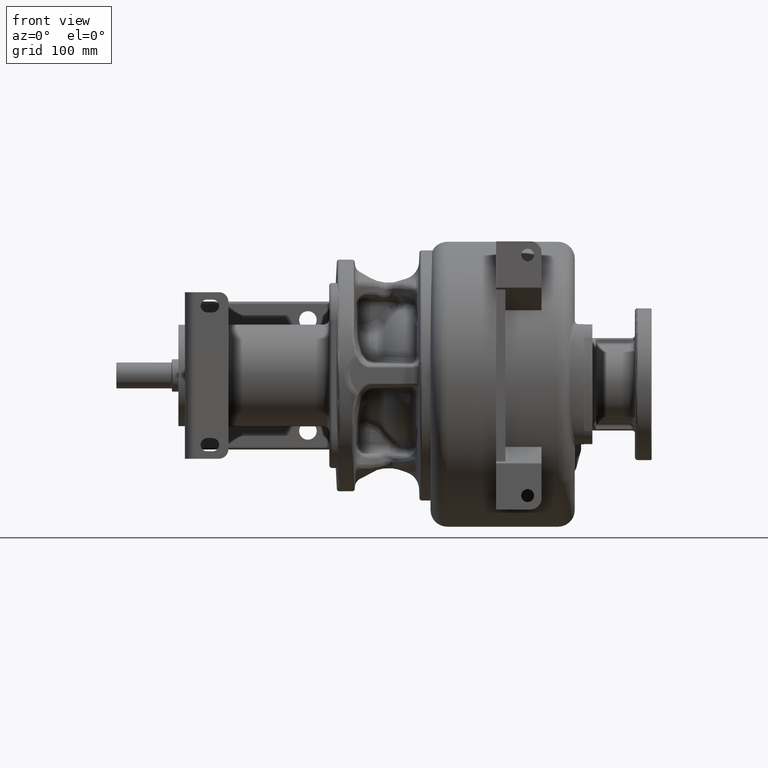
[diagram: clean part render]
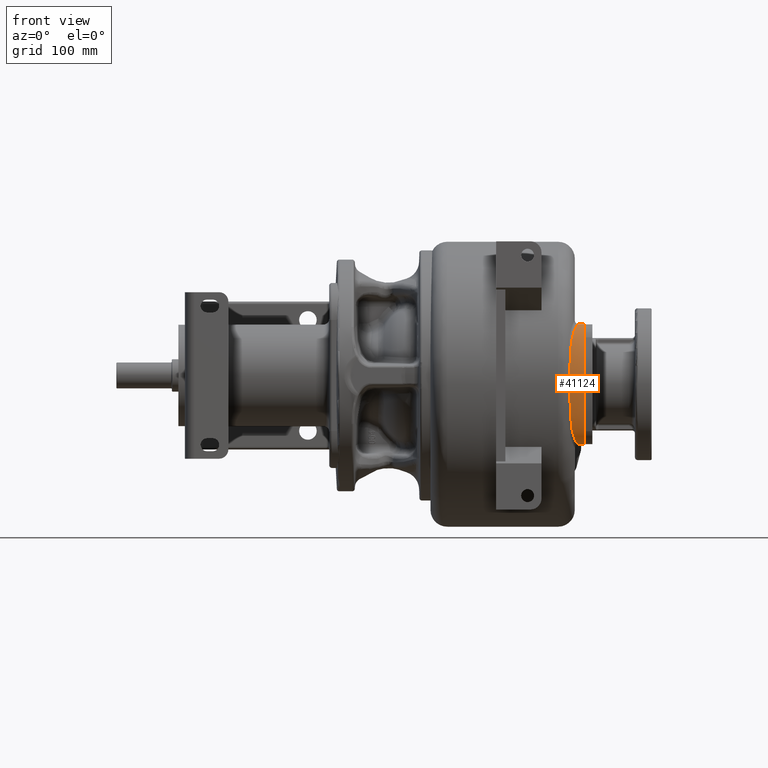
[diagram: same view with one face highlighted and labeled with its STEP entity id]
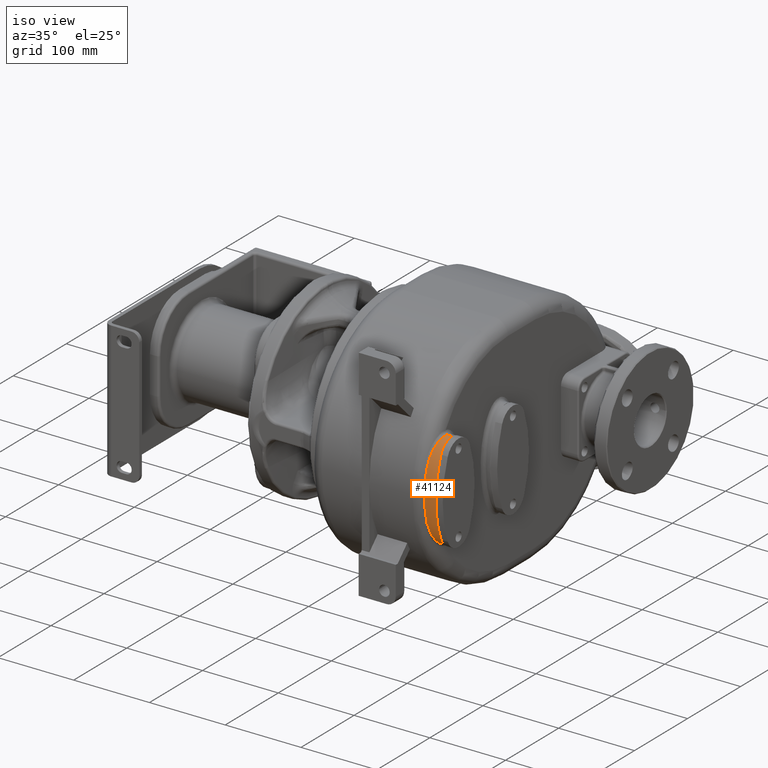
[diagram: same view with one face highlighted and labeled with its STEP entity id]
A machine part, front view. The second image highlights one B-rep face of the part: STEP entity #41124.
A second angle (iso view) of the same face is appended — the face is thin or edge-on in the first view.
In plain terms, the highlighted face is a SurfaceOfExtrusion surface.
Its self-contained STEP definition (entity closure, byte-faithful):
#4928=CARTESIAN_POINT('',(5.486613344684E1,4.000000000786E1,5.549998341802E1));
#4975=DIRECTION('',(-9.999999999897E-1,1.281504561312E-9,4.536448817370E-6));
#4976=VECTOR('',#4975,6.133866553126E0);
#4977=CARTESIAN_POINT('',(6.1E1,4.E1,-7.45E1));
#4978=LINE('',#4977,#4976);
#5063=CARTESIAN_POINT('',(6.1E1,1.5E2,-9.51E0));
#5064=DIRECTION('',(1.E0,0.E0,0.E0));
#5065=DIRECTION('',(0.E0,-9.999999993641E-1,3.566130081163E-5));
#5066=AXIS2_PLACEMENT_3D('',#5063,#5064,#5065);
#5068=CARTESIAN_POINT('',(6.1E1,1.5E2,-9.51E0));
#5069=DIRECTION('',(1.E0,0.E0,0.E0));
#5070=DIRECTION('',(0.E0,-9.996320697047E-1,-2.712425515743E-2));
#5071=AXIS2_PLACEMENT_3D('',#5068,#5069,#5070);
#5073=CARTESIAN_POINT('',(6.1E1,1.027989303273E1,-1.835826022760E1));
#5074=CARTESIAN_POINT('',(6.1E1,1.046789636866E1,-2.131935081073E1));
#5075=CARTESIAN_POINT('',(6.1E1,1.102615073468E1,-2.710215420390E1));
#5076=CARTESIAN_POINT('',(6.1E1,1.238105078445E1,-3.538057609049E1));
#5077=CARTESIAN_POINT('',(6.1E1,1.425376720589E1,-4.326298697080E1));
#5078=CARTESIAN_POINT('',(6.1E1,1.667424129756E1,-5.072648860443E1));
#5079=CARTESIAN_POINT('',(6.1E1,1.920331683597E1,-5.655449993563E1));
#5080=CARTESIAN_POINT('',(6.1E1,2.160182059305E1,-6.092993374182E1));
#5081=CARTESIAN_POINT('',(6.1E1,2.361744028871E1,-6.404575116789E1));
#5082=CARTESIAN_POINT('',(6.1E1,2.589057920412E1,-6.696462533196E1));
#5083=CARTESIAN_POINT('',(6.1E1,2.805142325098E1,-6.919316184218E1));
#5084=CARTESIAN_POINT('',(6.1E1,2.999483569128E1,-7.081176623935E1));
#5085=CARTESIAN_POINT('',(6.1E1,3.158231219440E1,-7.192636263547E1));
#5086=CARTESIAN_POINT('',(6.1E1,3.333106904160E1,-7.291761648230E1));
#5087=CARTESIAN_POINT('',(6.1E1,3.463685149305E1,-7.347142682747E1));
#5088=CARTESIAN_POINT('',(6.1E1,3.533896815663E1,-7.371068580683E1));
#5090=CARTESIAN_POINT('',(5.486613344684E1,4.000000000786E1,5.549998341802E1));
#5091=CARTESIAN_POINT('',(5.484825093388E1,3.985569344335E1,5.549996443372E1));
#5092=CARTESIAN_POINT('',(5.480884060566E1,3.956433177215E1,5.549550282497E1));
#5093=CARTESIAN_POINT('',(5.473871162594E1,3.911941053995E1,5.547441818244E1));
#5094=CARTESIAN_POINT('',(5.465752439886E1,3.866593625672E1,5.543823208400E1));
#5095=CARTESIAN_POINT('',(5.456523616460E1,3.820361295602E1,5.538600143403E1));
#5096=CARTESIAN_POINT('',(5.446184089449E1,3.773215693808E1,5.531676208368E1));
#5097=CARTESIAN_POINT('',(5.434740624540E1,3.725139481984E1,5.522948357155E1));
#5098=CARTESIAN_POINT('',(5.422199869648E1,3.676129962557E1,5.512311304258E1));
#5099=CARTESIAN_POINT('',(5.408555182238E1,3.626159721668E1,5.499648698496E1));
#5100=CARTESIAN_POINT('',(5.393804907426E1,3.575182175002E1,5.484829120700E1));
#5101=CARTESIAN_POINT('',(5.377957392749E1,3.523168460897E1,5.467714769826E1));
#5102=CARTESIAN_POINT('',(5.361035471408E1,3.470106331469E1,5.448163390479E1));
#5103=CARTESIAN_POINT('',(5.343088220082E1,3.416035005221E1,5.426046144211E1));
#5104=CARTESIAN_POINT('',(5.324188321959E1,3.360998468783E1,5.401236033986E1));
#5105=CARTESIAN_POINT('',(5.304385442579E1,3.305047812748E1,5.373609320411E1));
#5106=CARTESIAN_POINT('',(5.283723331679E1,3.248238374646E1,5.343045460943E1));
#5107=CARTESIAN_POINT('',(5.262263617878E1,3.190633218077E1,5.309429699529E1));
#5108=CARTESIAN_POINT('',(5.240081718320E1,3.132302199457E1,5.272654986273E1));
#5109=CARTESIAN_POINT('',(5.217247007524E1,3.073271991812E1,5.232587687622E1));
#5110=CARTESIAN_POINT('',(5.193853259830E1,3.013578598184E1,5.189095638942E1));
#5111=CARTESIAN_POINT('',(5.169961382735E1,2.953258731550E1,5.142043757042E1));
#5112=CARTESIAN_POINT('',(5.145619501395E1,2.892347549420E1,5.091290997581E1));
#5113=CARTESIAN_POINT('',(5.120894060173E1,2.830892716454E1,5.036702061805E1));
#5114=CARTESIAN_POINT('',(5.095860549745E1,2.768943661985E1,4.978140098063E1));
#5115=CARTESIAN_POINT('',(5.070600946152E1,2.706539075783E1,4.915452609891E1));
#5116=CARTESIAN_POINT('',(5.045216633947E1,2.643731681270E1,4.848494897858E1));
#5117=CARTESIAN_POINT('',(5.019757260678E1,2.580547056324E1,4.777085353579E1));
#5118=CARTESIAN_POINT('',(4.994279020548E1,2.517012131280E1,4.701028917248E1));
#5119=CARTESIAN_POINT('',(4.968852675974E1,2.453169439807E1,4.620134173374E1));
#5120=CARTESIAN_POINT('',(4.943565562695E1,2.389085628248E1,4.534227972931E1));
#5121=CARTESIAN_POINT('',(4.918527123451E1,2.324844744090E1,4.443153352465E1));
#5122=CARTESIAN_POINT('',(4.893815523536E1,2.260501877339E1,4.346703228960E1));
#5123=CARTESIAN_POINT('',(4.869485739250E1,2.196084125026E1,4.244605063829E1));
#5124=CARTESIAN_POINT('',(4.845611534777E1,2.131643049541E1,4.136593735569E1));
#5125=CARTESIAN_POINT('',(4.822282633332E1,2.067265795072E1,4.022437810497E1));
#5126=CARTESIAN_POINT('',(4.799607115542E1,2.003066844975E1,3.901937213912E1));
#5127=CARTESIAN_POINT('',(4.777666486576E1,1.939127587106E1,3.774809659952E1));
#5128=CARTESIAN_POINT('',(4.756519666203E1,1.875502817995E1,3.640675498776E1));
#5129=CARTESIAN_POINT('',(4.736239711744E1,1.812283125790E1,3.499172243592E1));
#5130=CARTESIAN_POINT('',(4.716912629979E1,1.749614226814E1,3.350012946297E1));
#5131=CARTESIAN_POINT('',(4.698625452979E1,1.687663727367E1,3.192929132032E1));
#5132=CARTESIAN_POINT('',(4.681438849323E1,1.626561836573E1,3.027507945898E1));
#5133=CARTESIAN_POINT('',(4.665403192071E1,1.566449321557E1,2.853275284834E1));
#5134=CARTESIAN_POINT('',(4.650575801693E1,1.507549615851E1,2.669908495053E1));
#5135=CARTESIAN_POINT('',(4.636998890784E1,1.450142520025E1,2.477211805983E1));
#5136=CARTESIAN_POINT('',(4.624706211313E1,1.394506305966E1,2.274946935360E1));
#5137=CARTESIAN_POINT('',(4.613716304184E1,1.340916594828E1,2.062788437364E1));
#5138=CARTESIAN_POINT('',(4.604031673362E1,1.289744024294E1,1.840708616195E1));
#5139=CARTESIAN_POINT('',(4.595614989119E1,1.241448012422E1,1.609124420980E1));
#5140=CARTESIAN_POINT('',(4.588419963860E1,1.196455649228E1,1.368457519261E1));
#5141=CARTESIAN_POINT('',(4.582410093521E1,1.155187259274E1,1.119260308892E1));
#5142=CARTESIAN_POINT('',(4.577497232948E1,1.118027146067E1,8.620853597836E0));
#5143=CARTESIAN_POINT('',(4.573534980833E1,1.085324894868E1,5.974308322649E0));
#5144=CARTESIAN_POINT('',(4.570418354146E1,1.057440476985E1,3.261228490964E0));
#5145=CARTESIAN_POINT('',(4.568092575245E1,1.034707271315E1,4.927412083567E-1));
#5146=CARTESIAN_POINT('',(4.566465368206E1,1.017389926116E1,-2.320466279904E0));
#5147=CARTESIAN_POINT('',(4.565408475671E1,1.005695517075E1,-5.167993698354E0));
#5148=CARTESIAN_POINT('',(4.564863325141E1,9.997818786263E0,-8.036977981651E0));
#5149=CARTESIAN_POINT('',(4.564856666392E1,9.997305398762E0,-1.091222891363E1));
#5150=CARTESIAN_POINT('',(4.565389740324E1,1.005537960136E1,-1.378058870694E1));
#5151=CARTESIAN_POINT('',(4.566445912875E1,1.017134602892E1,-1.663002946321E1));
#5152=CARTESIAN_POINT('',(4.568062265773E1,1.034388545445E1,-1.944896309668E1));
#5153=CARTESIAN_POINT('',(4.570379899096E1,1.057119584643E1,-2.222728953363E1));
#5154=CARTESIAN_POINT('',(4.573498294086E1,1.085066604933E1,-2.495207528666E1));
#5155=CARTESIAN_POINT('',(4.577475987261E1,1.117826260894E1,-2.760606422175E1));
#5156=CARTESIAN_POINT('',(4.582385126712E1,1.154985017073E1,-3.017953119394E1));
#5157=CARTESIAN_POINT('',(4.588380459757E1,1.196206754628E1,-3.267035137324E1));
#5158=CARTESIAN_POINT('',(4.595556570324E1,1.241126054415E1,-3.507487426177E1));
#5159=CARTESIAN_POINT('',(4.603966705070E1,1.289372073630E1,-3.739013159587E1));
#5160=CARTESIAN_POINT('',(4.613644239297E1,1.340538537714E1,-3.961225209864E1));
#5161=CARTESIAN_POINT('',(4.624624654020E1,1.394124170212E1,-4.173498410584E1));
#5162=CARTESIAN_POINT('',(4.636904600017E1,1.449741321276E1,-4.375810318936E1));
#5163=CARTESIAN_POINT('',(4.650473546007E1,1.507130904074E1,-4.568555502557E1));
#5164=CARTESIAN_POINT('',(4.665294013052E1,1.566023500438E1,-4.751997077345E1));
#5165=CARTESIAN_POINT('',(4.681322366626E1,1.626133539436E1,-4.926308882664E1));
#5166=CARTESIAN_POINT('',(4.698500898149E1,1.687231557830E1,-5.091797191369E1));
#5167=CARTESIAN_POINT('',(4.716779374395E1,1.749176853908E1,-5.248938735456E1));
#5168=CARTESIAN_POINT('',(4.736100381048E1,1.811843233578E1,-5.398157304962E1));
#5169=CARTESIAN_POINT('',(4.756377331590E1,1.875065570845E1,-5.539726119183E1));
#5170=CARTESIAN_POINT('',(4.777521614974E1,1.938694844722E1,-5.673924069806E1));
#5171=CARTESIAN_POINT('',(4.799459291125E1,2.002638967052E1,-5.801110882859E1));
#5172=CARTESIAN_POINT('',(4.822128336022E1,2.066840835367E1,-5.921662734455E1));
#5173=CARTESIAN_POINT('',(4.845456296681E1,2.131224570490E1,-6.035872586376E1));
#5174=CARTESIAN_POINT('',(4.869333210054E1,2.195675394033E1,-6.143939192094E1));
#5175=CARTESIAN_POINT('',(4.893666071038E1,2.260104019189E1,-6.246090278242E1));
#5176=CARTESIAN_POINT('',(4.918379717709E1,2.324457740807E1,-6.342589394542E1));
#5177=CARTESIAN_POINT('',(4.943414284148E1,2.388707052891E1,-6.433706240810E1));
#5178=CARTESIAN_POINT('',(4.968703422522E1,2.452801112447E1,-6.519654344686E1));
#5179=CARTESIAN_POINT('',(4.994136615583E1,2.516656355880E1,-6.600590973262E1));
#5180=CARTESIAN_POINT('',(5.019622447308E1,2.580204896323E1,-6.676687592882E1));
#5181=CARTESIAN_POINT('',(5.045088056649E1,2.643403500407E1,-6.748134868362E1));
#5182=CARTESIAN_POINT('',(5.070473221908E1,2.706224185717E1,-6.815126910327E1));
#5183=CARTESIAN_POINT('',(5.095732353987E1,2.768641445586E1,-6.877845757281E1));
#5184=CARTESIAN_POINT('',(5.120774711653E1,2.830604224003E1,-6.936437855940E1));
#5185=CARTESIAN_POINT('',(5.145510315253E1,2.892071869035E1,-6.991053954472E1));
#5186=CARTESIAN_POINT('',(5.169861372102E1,2.952995355495E1,-7.041831536959E1));
#5187=CARTESIAN_POINT('',(5.193759539964E1,3.013327052928E1,-7.088906106978E1));
#5188=CARTESIAN_POINT('',(5.217150712023E1,3.073032022852E1,-7.132419011414E1));
#5189=CARTESIAN_POINT('',(5.239986929332E1,3.132071318008E1,-7.172503964346E1));
#5190=CARTESIAN_POINT('',(5.262174873078E1,3.190405498434E1,-7.209291437011E1));
#5191=CARTESIAN_POINT('',(5.283638694170E1,3.248003801148E1,-7.242913763856E1));
#5192=CARTESIAN_POINT('',(5.304303007927E1,3.304803660471E1,-7.273483223097E1));
#5193=CARTESIAN_POINT('',(5.324107039858E1,3.360749355338E1,-7.301118385805E1));
#5194=CARTESIAN_POINT('',(5.343004125330E1,3.415794458838E1,-7.325942909917E1));
#5195=CARTESIAN_POINT('',(5.360955155809E1,3.469883259106E1,-7.348076921053E1));
#5196=CARTESIAN_POINT('',(5.377887835709E1,3.522965018131E1,-7.367644034692E1));
#5197=CARTESIAN_POINT('',(5.393746707359E1,3.574992949087E1,-7.384770607462E1));
#5198=CARTESIAN_POINT('',(5.408507233955E1,3.625978415090E1,-7.399599419490E1));
#5199=CARTESIAN_POINT('',(5.422159178162E1,3.675950505010E1,-7.412269052766E1));
#5200=CARTESIAN_POINT('',(5.434703212906E1,3.724954643572E1,-7.422911403579E1));
#5201=CARTESIAN_POINT('',(5.446143145620E1,3.773023069667E1,-7.431644509084E1));
#5202=CARTESIAN_POINT('',(5.456482989907E1,3.820169781278E1,-7.438575304750E1));
#5203=CARTESIAN_POINT('',(5.465715676010E1,3.866415669189E1,-7.443806327065E1));
#5204=CARTESIAN_POINT('',(5.473842802029E1,3.911794986615E1,-7.447432794102E1));
#5205=CARTESIAN_POINT('',(5.480866628705E1,3.956342402366E1,-7.449548855977E1));
#5206=CARTESIAN_POINT('',(5.484820005079E1,3.985535791879E1,-7.449994959505E1));
#5207=CARTESIAN_POINT('',(5.486613344694E1,4.000000000786E1,-7.449997217403E1));
#5209=DIRECTION('',(-9.999999999963E-1,1.281309951296E-9,-2.703349258996E-6));
#5210=VECTOR('',#5209,6.133866553182E0);
#5211=CARTESIAN_POINT('',(6.1E1,4.E1,5.55E1));
#5212=LINE('',#5211,#5210);
#5213=CARTESIAN_POINT('',(6.1E1,3.518037578433E1,5.465569962316E1));
#5214=CARTESIAN_POINT('',(6.1E1,3.452932561701E1,5.442609713447E1));
#5215=CARTESIAN_POINT('',(6.1E1,3.331041563771E1,5.390213800896E1));
#5216=CARTESIAN_POINT('',(6.1E1,3.166463704168E1,5.297407677548E1));
#5217=CARTESIAN_POINT('',(6.1E1,3.016158509970E1,5.193491921524E1));
#5218=CARTESIAN_POINT('',(6.1E1,2.831270875069E1,5.042857592707E1));
#5219=CARTESIAN_POINT('',(6.1E1,2.624433104194E1,4.835671891029E1));
#5220=CARTESIAN_POINT('',(6.1E1,2.405480360447E1,4.564279270293E1));
#5221=CARTESIAN_POINT('',(6.1E1,2.210203877707E1,4.274457396476E1));
#5222=CARTESIAN_POINT('',(6.1E1,1.976480151694E1,3.867288219676E1));
#5223=CARTESIAN_POINT('',(6.1E1,1.727613556397E1,3.324631958196E1));
#5224=CARTESIAN_POINT('',(6.1E1,1.485531505632E1,2.629420635866E1));
#5225=CARTESIAN_POINT('',(6.1E1,1.293515115284E1,1.895238940374E1));
#5226=CARTESIAN_POINT('',(6.1E1,1.148307241667E1,1.124622184426E1));
#5227=CARTESIAN_POINT('',(6.1E1,1.082205074220E1,5.869788536330E0));
#5228=CARTESIAN_POINT('',(6.1E1,1.057085227603E1,3.119836300111E0));
#5240=CARTESIAN_POINT('',(6.1E1,3.533896815663E1,-7.371068580683E1));
#5241=CARTESIAN_POINT('',(6.1E1,3.685087049394E1,-7.422589393233E1));
#5242=CARTESIAN_POINT('',(6.1E1,3.840272479199E1,-7.45E1));
#5243=CARTESIAN_POINT('',(6.1E1,4.E1,-7.45E1));
#5255=CARTESIAN_POINT('',(6.1E1,4.E1,5.55E1));
#5256=CARTESIAN_POINT('',(6.1E1,3.834528668704E1,5.55E1));
#5257=CARTESIAN_POINT('',(6.1E1,3.674088974593E1,5.520603799523E1));
#5258=CARTESIAN_POINT('',(6.1E1,3.518037578433E1,5.465569962316E1));
#5280=CARTESIAN_POINT('',(6.1E1,1.057085227597E1,3.119836299483E0));
#5281=CARTESIAN_POINT('',(6.1E1,1.018724515509E1,-1.079637033510E0));
#5282=CARTESIAN_POINT('',(6.1E1,9.999850152622E0,-5.288049897743E0));
#5283=CARTESIAN_POINT('',(6.1E1,1.000000008902E1,-9.505007411785E0));
#33645=VERTEX_POINT('',#4928);
#33647=VERTEX_POINT('',#5207);
#33650=CARTESIAN_POINT('',(6.1E1,4.E1,-7.45E1));
#33651=VERTEX_POINT('',#33650);
#33652=CARTESIAN_POINT('',(6.1E1,4.E1,5.55E1));
#33653=VERTEX_POINT('',#33652);
#34387=CARTESIAN_POINT('',(6.1E1,3.518037578433E1,5.465569962316E1));
#34389=VERTEX_POINT('',#34387);
#34390=CARTESIAN_POINT('',(6.1E1,1.057085227597E1,3.119836299482E0));
#34391=CARTESIAN_POINT('',(6.1E1,1.000000008902E1,-9.505007411785E0));
#34392=VERTEX_POINT('',#34390);
#34393=VERTEX_POINT('',#34391);
#34394=CARTESIAN_POINT('',(6.1E1,1.005151024134E1,-1.330739572204E1));
#34395=VERTEX_POINT('',#34394);
#34396=CARTESIAN_POINT('',(6.1E1,3.533896815663E1,-7.371068580683E1));
#34398=VERTEX_POINT('',#34396);
#34420=CARTESIAN_POINT('',(6.1E1,1.027989303273E1,-1.835826022760E1));
#34421=VERTEX_POINT('',#34420);
#41099=CARTESIAN_POINT('',(6.1E1,4.E1,-9.5E0));
#41100=DIRECTION('',(1.E0,0.E0,0.E0));
#41101=DIRECTION('',(0.E0,0.E0,-1.E0));
#41102=AXIS2_PLACEMENT_3D('',#41099,#41100,#41101);
#41104=DIRECTION('',(1.E0,0.E0,0.E0));
#41105=VECTOR('',#41104,1.E0);
#41106=SURFACE_OF_LINEAR_EXTRUSION('',#41103,#41105);
#41107=ORIENTED_EDGE('',*,*,#41077,.T.);
#41108=ORIENTED_EDGE('',*,*,#41075,.T.);
#41109=ORIENTED_EDGE('',*,*,#41092,.T.);
#41111=ORIENTED_EDGE('',*,*,#41110,.T.);
#41112=ORIENTED_EDGE('',*,*,#40954,.T.);
#41114=ORIENTED_EDGE('',*,*,#41113,.F.);
#41115=ORIENTED_EDGE('',*,*,#40949,.F.);
#41117=ORIENTED_EDGE('',*,*,#41116,.T.);
#41119=ORIENTED_EDGE('',*,*,#41118,.T.);
#41121=ORIENTED_EDGE('',*,*,#41120,.T.);
#41122=EDGE_LOOP('',(#41107,#41108,#41109,#41111,#41112,#41114,#41115,#41117,
#41119,#41121));
#41123=FACE_OUTER_BOUND('',#41122,.F.);
#41124=ADVANCED_FACE('',(#41123),#41106,.T.);
#5067=CIRCLE('',#5066,1.4E2);
#5072=CIRCLE('',#5071,1.4E2);
#5089=B_SPLINE_CURVE_WITH_KNOTS('',3,(#5073,#5074,#5075,#5076,#5077,#5078,#5079,
#5080,#5081,#5082,#5083,#5084,#5085,#5086,#5087,#5088),.UNSPECIFIED.,.F.,.F.,(4,
1,1,1,1,1,1,1,1,1,1,1,1,4),(0.E0,1.25E-1,2.5E-1,3.75E-1,5.E-1,6.25E-1,6.875E-1,
7.5E-1,8.125E-1,8.75E-1,9.0625E-1,9.375E-1,9.6875E-1,1.E0),.UNSPECIFIED.);
#5208=B_SPLINE_CURVE_WITH_KNOTS('',3,(#5090,#5091,#5092,#5093,#5094,#5095,#5096,
#5097,#5098,#5099,#5100,#5101,#5102,#5103,#5104,#5105,#5106,#5107,#5108,#5109,
#5110,#5111,#5112,#5113,#5114,#5115,#5116,#5117,#5118,#5119,#5120,#5121,#5122,
#5123,#5124,#5125,#5126,#5127,#5128,#5129,#5130,#5131,#5132,#5133,#5134,#5135,
#5136,#5137,#5138,#5139,#5140,#5141,#5142,#5143,#5144,#5145,#5146,#5147,#5148,
#5149,#5150,#5151,#5152,#5153,#5154,#5155,#5156,#5157,#5158,#5159,#5160,#5161,
#5162,#5163,#5164,#5165,#5166,#5167,#5168,#5169,#5170,#5171,#5172,#5173,#5174,
#5175,#5176,#5177,#5178,#5179,#5180,#5181,#5182,#5183,#5184,#5185,#5186,#5187,
#5188,#5189,#5190,#5191,#5192,#5193,#5194,#5195,#5196,#5197,#5198,#5199,#5200,
#5201,#5202,#5203,#5204,#5205,#5206,#5207),.UNSPECIFIED.,.F.,.F.,(4,1,1,1,1,1,1,
1,1,1,1,1,1,1,1,1,1,1,1,1,1,1,1,1,1,1,1,1,1,1,1,1,1,1,1,1,1,1,1,1,1,1,1,1,1,1,1,
1,1,1,1,1,1,1,1,1,1,1,1,1,1,1,1,1,1,1,1,1,1,1,1,1,1,1,1,1,1,1,1,1,1,1,1,1,1,1,1,
1,1,1,1,1,1,1,1,1,1,1,1,1,1,1,1,1,1,1,1,1,1,1,1,1,1,1,1,4),(0.E0,
8.695652173913E-3,1.739130434783E-2,2.608695652174E-2,3.478260869565E-2,
4.347826086957E-2,5.217391304348E-2,6.086956521739E-2,6.956521739130E-2,
7.826086956522E-2,8.695652173913E-2,9.565217391304E-2,1.043478260870E-1,
1.130434782609E-1,1.217391304348E-1,1.304347826087E-1,1.391304347826E-1,
1.478260869565E-1,1.565217391304E-1,1.652173913043E-1,1.739130434783E-1,
1.826086956522E-1,1.913043478261E-1,2.E-1,2.086956521739E-1,2.173913043478E-1,
2.260869565217E-1,2.347826086957E-1,2.434782608696E-1,2.521739130435E-1,
2.608695652174E-1,2.695652173913E-1,2.782608695652E-1,2.869565217391E-1,
2.956521739130E-1,3.043478260870E-1,3.130434782609E-1,3.217391304348E-1,
3.304347826087E-1,3.391304347826E-1,3.478260869565E-1,3.565217391304E-1,
3.652173913043E-1,3.739130434783E-1,3.826086956522E-1,3.913043478261E-1,4.E-1,
4.086956521739E-1,4.173913043478E-1,4.260869565217E-1,4.347826086957E-1,
4.434782608696E-1,4.521739130435E-1,4.608695652174E-1,4.695652173913E-1,
4.782608695652E-1,4.869565217391E-1,4.956521739130E-1,5.043478260870E-1,
5.130434782609E-1,5.217391304348E-1,5.304347826087E-1,5.391304347826E-1,
5.478260869565E-1,5.565217391304E-1,5.652173913043E-1,5.739130434783E-1,
5.826086956522E-1,5.913043478261E-1,6.E-1,6.086956521739E-1,6.173913043478E-1,
6.260869565217E-1,6.347826086957E-1,6.434782608696E-1,6.521739130435E-1,
6.608695652174E-1,6.695652173913E-1,6.782608695652E-1,6.869565217391E-1,
6.956521739130E-1,7.043478260870E-1,7.130434782609E-1,7.217391304348E-1,
7.304347826087E-1,7.391304347826E-1,7.478260869565E-1,7.565217391304E-1,
7.652173913043E-1,7.739130434783E-1,7.826086956522E-1,7.913043478261E-1,8.E-1,
8.086956521739E-1,8.173913043478E-1,8.260869565217E-1,8.347826086957E-1,
8.434782608696E-1,8.521739130435E-1,8.608695652174E-1,8.695652173913E-1,
8.782608695652E-1,8.869565217391E-1,8.956521739130E-1,9.043478260870E-1,
9.130434782609E-1,9.217391304348E-1,9.304347826087E-1,9.391304347826E-1,
9.478260869565E-1,9.565217391304E-1,9.652173913043E-1,9.739130434783E-1,
9.826086956522E-1,9.913043478261E-1,1.E0),.UNSPECIFIED.);
#5229=B_SPLINE_CURVE_WITH_KNOTS('',3,(#5213,#5214,#5215,#5216,#5217,#5218,#5219,
#5220,#5221,#5222,#5223,#5224,#5225,#5226,#5227,#5228),.UNSPECIFIED.,.F.,.F.,(4,
1,1,1,1,1,1,1,1,1,1,1,1,4),(0.E0,3.125E-2,6.25E-2,9.375E-2,1.25E-1,1.875E-1,
2.5E-1,3.125E-1,3.75E-1,5.E-1,6.25E-1,7.5E-1,8.75E-1,1.E0),.UNSPECIFIED.);
#5244=B_SPLINE_CURVE_WITH_KNOTS('',3,(#5240,#5241,#5242,#5243),.UNSPECIFIED.,
.F.,.F.,(4,4),(0.E0,1.E0),.UNSPECIFIED.);
#5259=B_SPLINE_CURVE_WITH_KNOTS('',3,(#5255,#5256,#5257,#5258),.UNSPECIFIED.,
.F.,.F.,(4,4),(0.E0,1.E0),.UNSPECIFIED.);
#5284=B_SPLINE_CURVE_WITH_KNOTS('',3,(#5280,#5281,#5282,#5283),.UNSPECIFIED.,
.F.,.F.,(4,4),(0.E0,1.E0),.UNSPECIFIED.);
#40949=EDGE_CURVE('',#33653,#33645,#5212,.T.);
#40954=EDGE_CURVE('',#33651,#33647,#4978,.T.);
#41075=EDGE_CURVE('',#34395,#34421,#5072,.T.);
#41077=EDGE_CURVE('',#34393,#34395,#5067,.T.);
#41092=EDGE_CURVE('',#34421,#34398,#5089,.T.);
#41103=ELLIPSE('',#41102,6.5E1,3.E1);
#41110=EDGE_CURVE('',#34398,#33651,#5244,.T.);
#41113=EDGE_CURVE('',#33645,#33647,#5208,.T.);
#41116=EDGE_CURVE('',#33653,#34389,#5259,.T.);
#41118=EDGE_CURVE('',#34389,#34392,#5229,.T.);
#41120=EDGE_CURVE('',#34392,#34393,#5284,.T.);